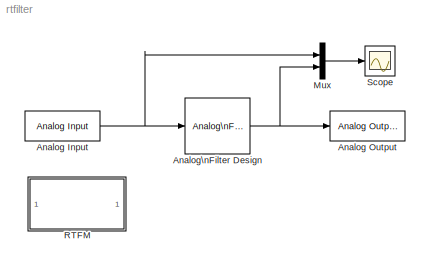
MODEL rtfilter
KIND model
CONFIG PostLoadFcn = if ~exist('dsparch4','file') errordlg('Signal Processing Blockset is required to run this demo.', 'Signal Processing Blockset required'); end
BLOCK [Reference] Analog Input  REF=rtwinlib/Analog Input
  Channels = 1
  DrvAddress = 768
  DrvOptions = 0
  Ports = [0, 1]
  RangeMode = 1
  SampleTime = 2e-4
  SourceBlock = rtwinlib/Analog Input
  SourceType = RTWin Analog Input
  VoltRange = 1
BLOCK [Reference] Analog Output  REF=rtwinlib/Analog Output
  Channels = 1
  DrvAddress = 0
  DrvOptions = 0
  FinalValue = []
  InitialValue = []
  Ports = [1]
  RangeMode = 1
  SampleTime = 2e-4
  SourceBlock = rtwinlib/Analog Output
  SourceType = RTWin Analog Output
  VoltRange = 1
BLOCK [Reference] Analog\nFilter Design  REF=dsparch4/Analog\nFilter Design
  N = 4
  Ports = [1, 1]
  Rp = 3
  Rs = 40
  SourceBlock = dsparch4/Analog\nFilter Design
  SourceType = Analog Filter Design
  Whi = 80
  Wlo = 500
  filttype = Lowpass
  method = Butterworth
BLOCK [Mux] Mux
  DisplayOption = bar
  Inputs = 2
  Ports = [2, 1]
BLOCK [SubSystem] RTFM 
  MaskDisplay = disp('Info')
  MaskIconFrame = on
  MaskIconOpaque = on
  MaskIconRotate = none
  MaskIconUnits = autoscale
  MaskType = Frame-Based Simulation Info
  Ports = []
  TreatAsAtomicUnit = off
BLOCK [Scope] Scope
  DataFormat = Structure
  ExtModeLoggingTrig = on
  ExtModeUploadOption = log
  NumInputPorts = 1
  Ports = [1]
  TimeRange = 0.2
  YMax = 1.28483
  YMin = -1.25659
  ZoomMode = yonly
ANNOTATION RTFM : How to run this demo:\n\n1) Open the Analog Input and Analog Output blocks and select your \n data acquisition board.\n If there's no board installed, install it using the Install new board button.\n2) Build the model using Tools->Real-Time Workshop->Build Model.\n3) Connect to the real-time code using Simulation->Connect to target.\n4) Start the real-time execution using Simulation->Start real-ti...<+159ch>
NET Analog Input:1 -> Analog\nFilter Design:1, Mux:1
NET Analog\nFilter Design:1 -> Analog Output:1, Mux:2
LINE Mux:1 -> Scope:1
note: NET lines group one-source signal fan-out (src -> all destinations, sorted); 1:1 wires keep LINE
